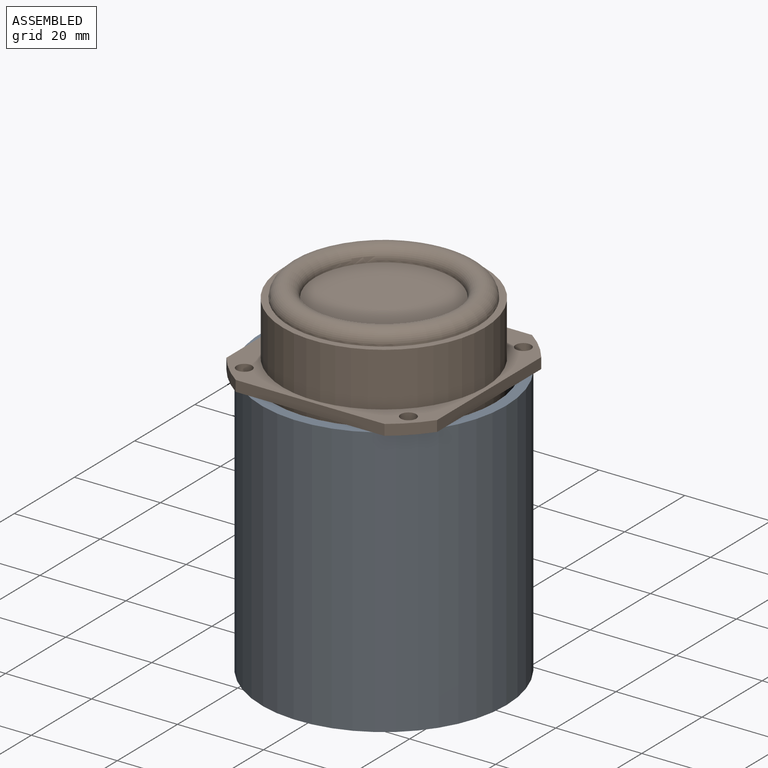
[diagram: assembled view]
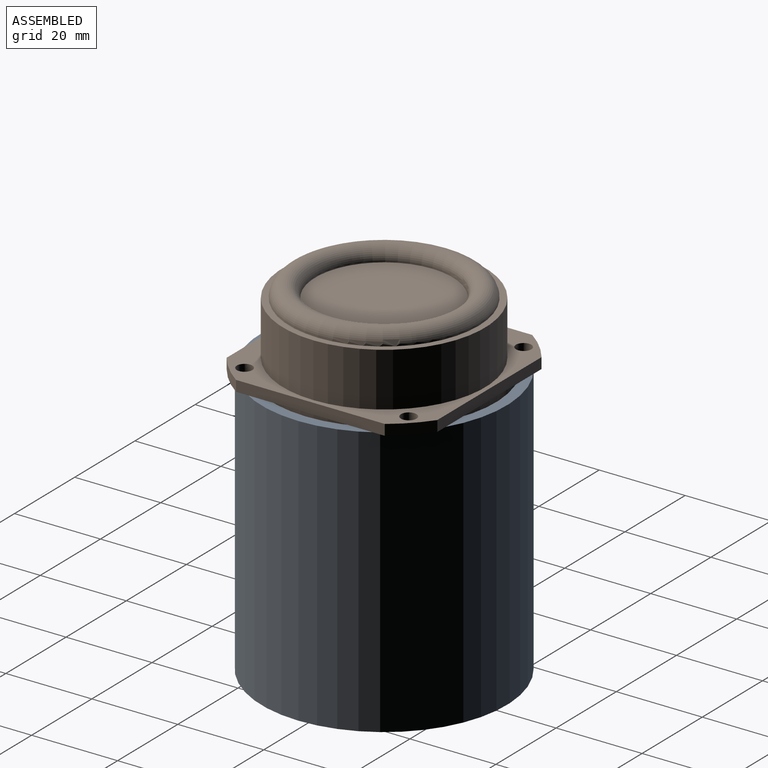
[diagram: assembled view, second angle]
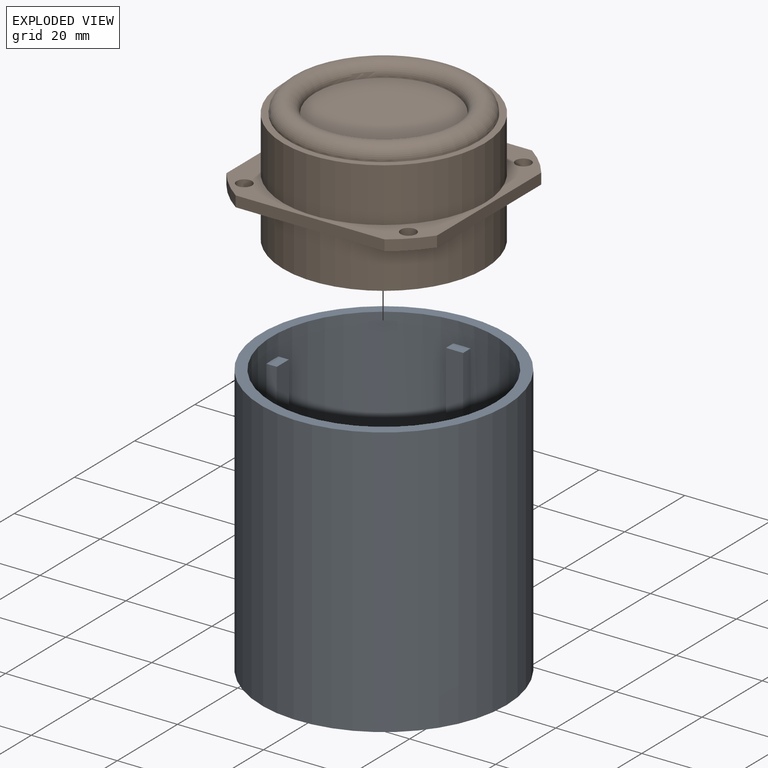
[diagram: exploded view]
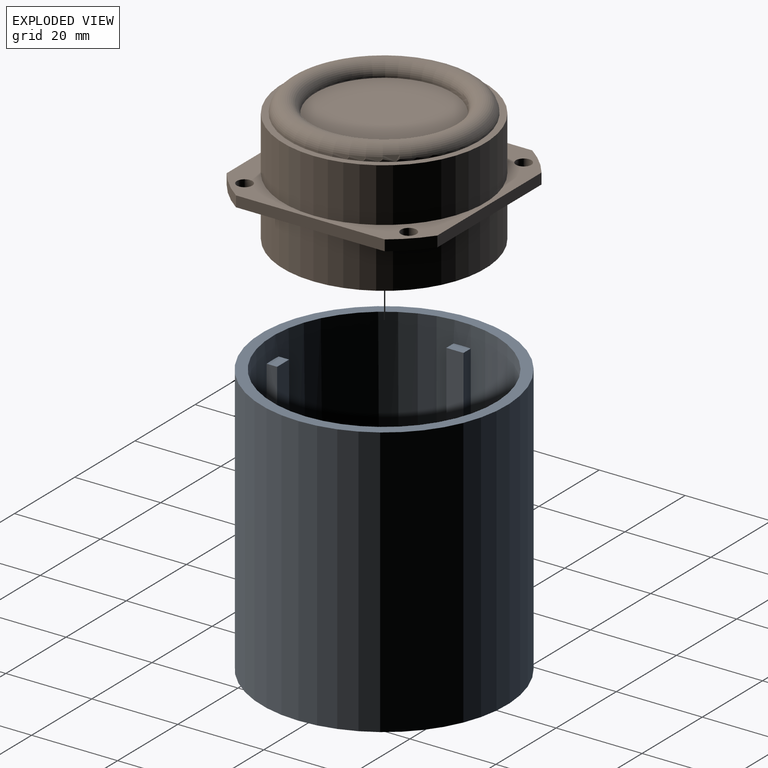
[diagram: exploded view, second angle]
ASSEMBLY  parts=2 mates=2
PART A: 30 faces, bbox 57x57x63 mm
  f0: plane 30x4mm, normal (1,0,0), area 120mm2, adj f5,f11,f12,f29
  f1: plane 30x4mm, normal (0,-1,0), area 120mm2, adj f5,f14,f15,f27
  f2: plane 30x4mm, normal (-1,0,0), area 120mm2, adj f5,f17,f18,f25
  f3: plane 30x4mm, normal (0,1,0), area 120mm2, adj f5,f20,f21,f23
  f4: cylinder r=26mm len=60mm, axis (0,0,-1), area 8920.9mm2, adj f5,f7,f10,f11,f12,f13,f14,f15
  f5: plane 51.85x51.85mm, normal (0,0,1), area 1935.6mm2, adj f0,f1,f2,f3,f4,f8,f11,f12
  f6: cylinder r=28.5mm len=63mm, axis (0,0,-1), area 11281.5mm2, adj f7,f9
  f7: plane 57x57mm, normal (0,0,1), area 428mm2, adj f4,f6
  f8: cylinder r=2mm len=4mm, axis (0,0,1), area 37.7mm2, adj f5,f9
  f9: plane 57x57mm, normal (0,0,-1), area 2539.2mm2, adj f6,f8
  f10: plane 4x2.5mm, normal (0,0,1), area 9.9mm2, adj f4,f11,f12,f28
  f11: plane 55x10.92mm, normal (0,-1,0), area 388.3mm2, adj f0,f4,f5,f10,f28,f29
  f12: plane 55x10.92mm, normal (0,1,0), area 388.3mm2, adj f0,f4,f5,f10,f28,f29
  f13: plane 4x2.5mm, normal (0,0,1), area 9.9mm2, adj f4,f14,f15,f26
  f14: plane 55x10.92mm, normal (1,0,0), area 388.3mm2, adj f1,f4,f5,f13,f26,f27
  f15: plane 55x10.92mm, normal (-1,0,0), area 388.3mm2, adj f1,f4,f5,f13,f26,f27
  f16: plane 4x2.5mm, normal (0,0,1), area 9.9mm2, adj f4,f17,f18,f24
  f17: plane 55x10.92mm, normal (0,-1,0), area 388.3mm2, adj f2,f4,f5,f16,f24,f25
  f18: plane 55x10.92mm, normal (0,1,0), area 388.3mm2, adj f2,f4,f5,f16,f24,f25
  f19: plane 4x2.5mm, normal (0,0,1), area 9.9mm2, adj f4,f20,f21,f22
  f20: plane 55x10.92mm, normal (-1,0,0), area 388.3mm2, adj f3,f4,f5,f19,f22,f23
  f21: plane 55x10.92mm, normal (1,0,0), area 388.3mm2, adj f3,f4,f5,f19,f22,f23
  f22: plane 25x4mm, normal (0,1,0), area 100mm2, adj f19,f20,f21,f23
  f23: plane 8.5x4mm, normal (0,0,1), area 34mm2, adj f3,f20,f21,f22
  f24: plane 25x4mm, normal (-1,0,0), area 100mm2, adj f16,f17,f18,f25
  f25: plane 8.5x4mm, normal (0,0,1), area 34mm2, adj f2,f17,f18,f24
  f26: plane 25x4mm, normal (0,-1,0), area 100mm2, adj f13,f14,f15,f27
  f27: plane 8.5x4mm, normal (0,0,1), area 34mm2, adj f1,f14,f15,f26
  f28: plane 25x4mm, normal (1,0,0), area 100mm2, adj f10,f11,f12,f29
  f29: plane 8.5x4mm, normal (0,0,1), area 34mm2, adj f0,f11,f12,f28
PART B: 20 faces, bbox 49x49x29.4 mm
  f0: plane 47x47mm, normal (0,0,1), area 214.4mm2, adj f15,f18
  f1: plane 34.63x2.5mm, normal (-1,0,0), area 86.6mm2, adj f2,f12,f13,f14
  f2: cylinder r=30mm len=7.19mm, axis (0,0,-1), area 25.5mm2, adj f1,f3,f13,f14
  f3: plane 34.63x2.5mm, normal (0,-1,0), area 86.6mm2, adj f2,f4,f13,f14
  f4: cylinder r=30mm len=7.19mm, axis (0,0,-1), area 25.5mm2, adj f3,f5,f13,f14
  f5: plane 34.63x2.5mm, normal (1,0,0), area 86.6mm2, adj f4,f6,f13,f14
  f6: cylinder r=30mm len=7.19mm, axis (0,0,-1), area 25.5mm2, adj f5,f7,f13,f14
  f7: plane 34.63x2.5mm, normal (0,1,0), area 86.6mm2, adj f6,f12,f13,f14
  f8: cylinder r=1.8mm len=3.6mm, axis (0,0,-1), area 28.3mm2, adj f13,f14
  f9: cylinder r=1.8mm len=3.6mm, axis (0,0,-1), area 28.3mm2, adj f13,f14
  f10: cylinder r=1.8mm len=3.6mm, axis (0,0,-1), area 28.3mm2, adj f13,f14
  f11: cylinder r=1.8mm len=3.6mm, axis (0,0,-1), area 28.3mm2, adj f13,f14
  f12: cylinder r=30mm len=7.19mm, axis (0,0,-1), area 25.5mm2, adj f1,f7,f13,f14
  f13: plane 49x49mm, normal (0,0,1), area 533.8mm2, adj f1,f2,f3,f4,f5,f6,f7,f8
  f14: plane 49x49mm, normal (0,0,-1), area 533.8mm2, adj f1,f2,f3,f4,f5,f6,f7,f8
  f15: cylinder r=23.5mm len=47mm, axis (0,0,-1), area 1853.1mm2, adj f0,f13
  f16: cylinder r=23.5mm len=47mm, axis (0,0,1), area 1675.9mm2, adj f14,f17
  f17: plane 47x47mm, normal (0,0,-1), area 1734.9mm2, adj f16
  f18: torus R=19mm, axis (0,0,-1), area 1125.1mm2, adj f0,f19
  f19: plane 32x32mm, normal (0,0,1), area 804.2mm2, adj f18
PLACE A t=(0,0,5.67)mm
PLACE B t=(-24.5,-24.5,23.67)mm
MATE planar A.f4 <-> B.f2  axis (0,0,1) through (0,0,23.67)mm
MATE cylindrical B.f2 <-> A.f4  axis (0,0,1) through (0,0,18)mm
